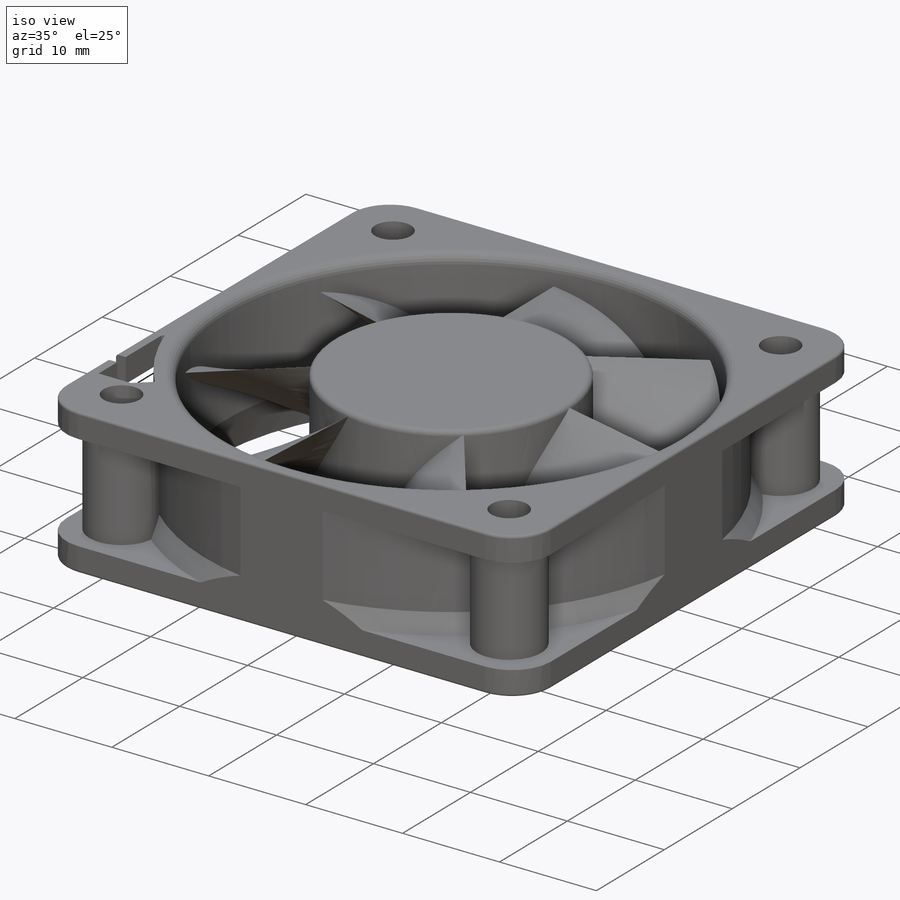
[diagram: iso view]
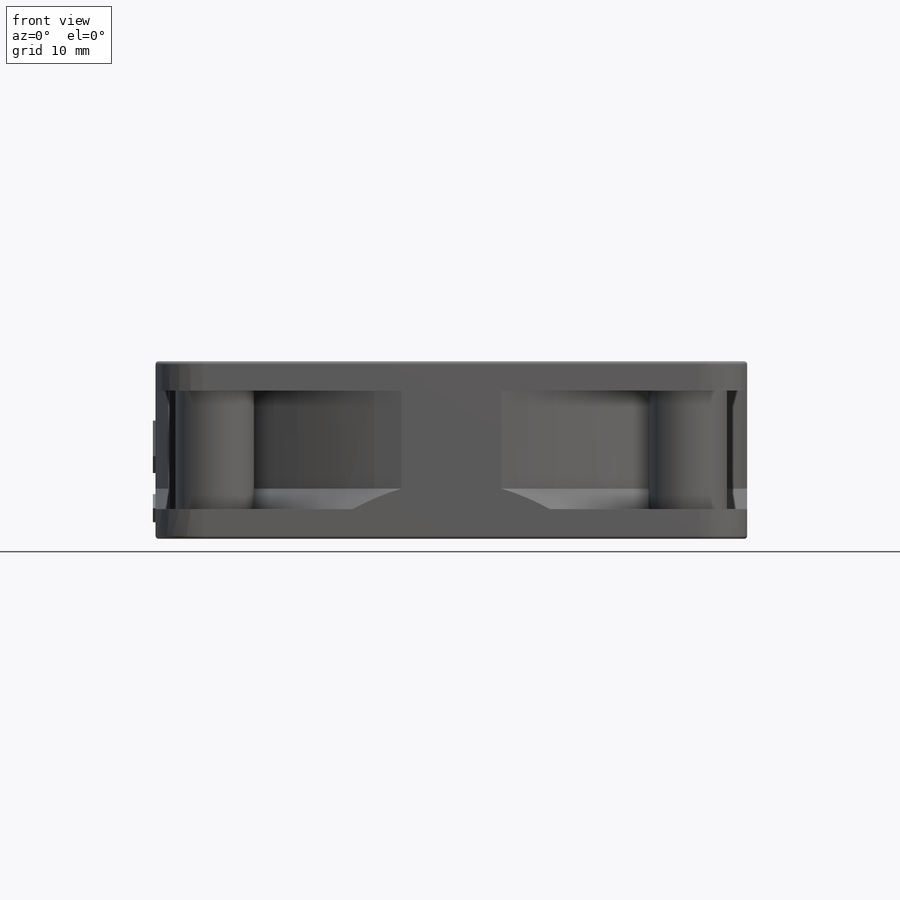
[diagram: front view]
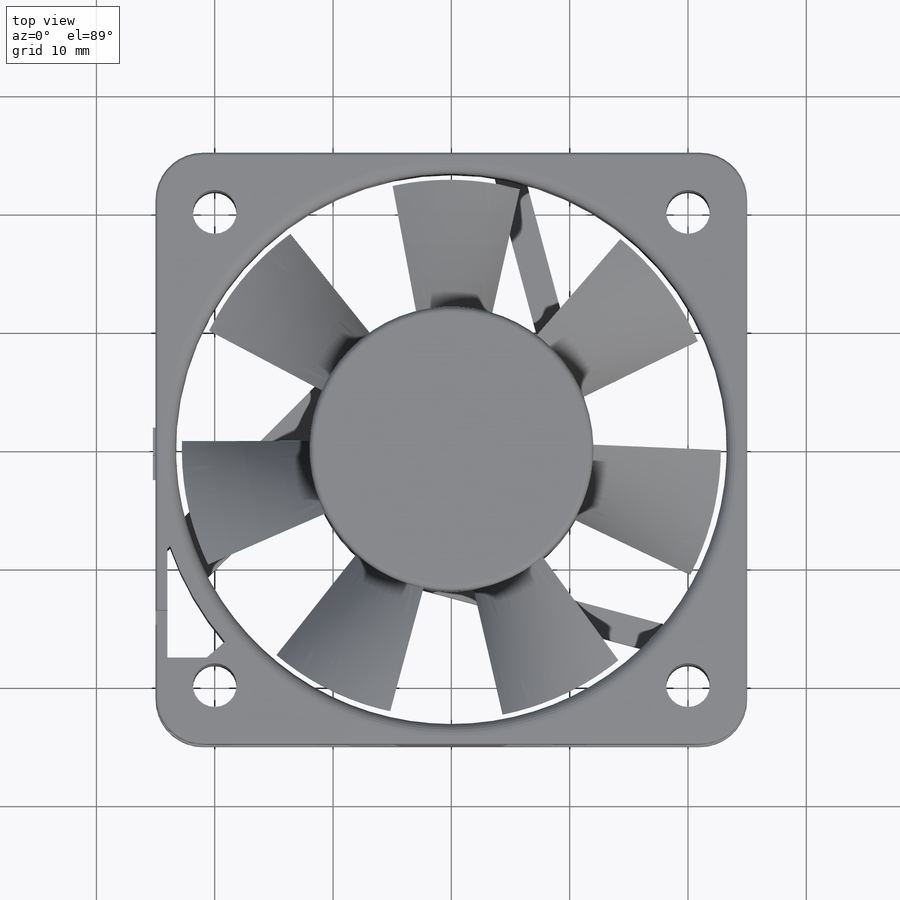
[diagram: top view]
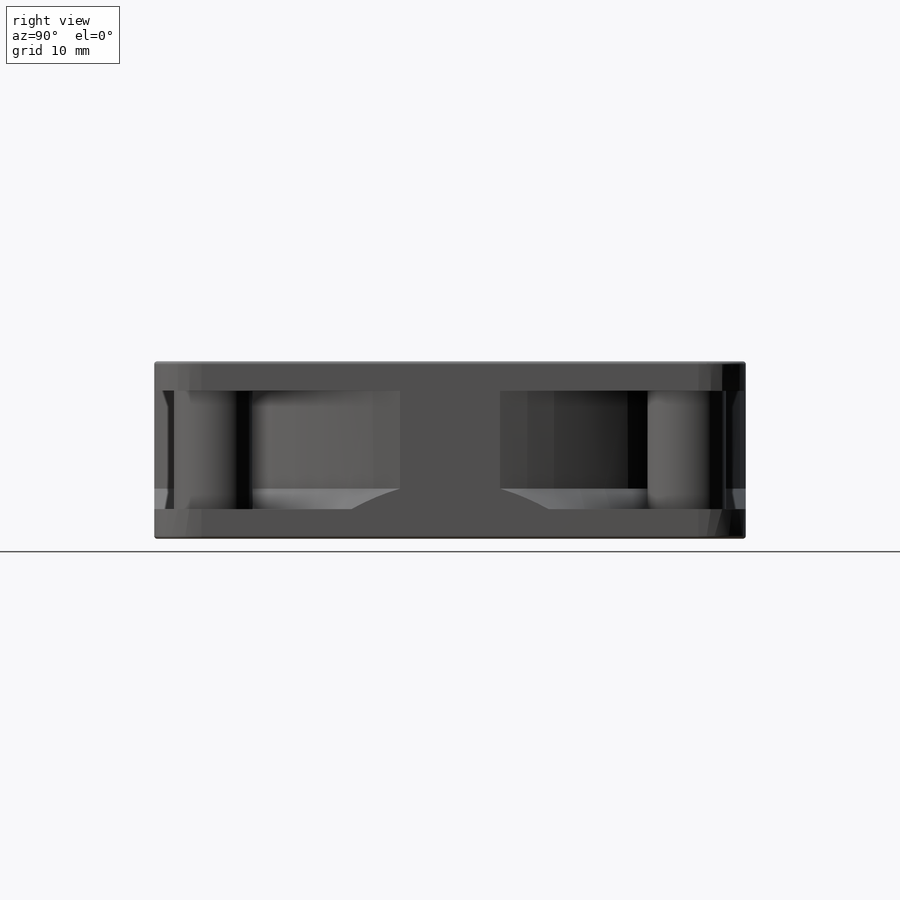
[diagram: right view]
SOLIDWORKS PART (.sldprt)
format: sldprt  version: not decoded by parser v0  size: 1,660,928 bytes
history: native  units: mm
features: sketch x16, extrude x6, cut_extrude x6, fillet x5, plane x5, chamfer x2, material x1, cut_revolve x1, pattern_circular x1 (+12 scaffold rows collapsed)
feature tree (55):
  scaffold x12  (default folders/planes/origin — collapsed)
  material  "Material <not specified>"
  sketch  "Sketch1"  dims[Body Width Location=25.0mm Body Width=50.0mm Body Height Location=25.0mm Body Height=50.0mm]
  extrude  "Main Body"  Depth=15mm
  sketch  "Sketch2"  dims[D1=46.55mm]
  cut_extrude  "Fan Hole Cut"  [1 undecoded]
  chamfer  "Fan Hole Front Chamfer"  Distance=1.5mm Angle=70deg
  sketch  "Sketch3"  dims[c1.D1=24.0mm c1.D2=~51.858483mm c2.D2=15.0deg c2.D3=2.5mm c2.D4=~51.776428mm c3.D4=15.0deg c3.D5=2.5mm c3.D6=~21.101555mm c4.D6=45.0deg c4.D7=~21.101555mm c5.D7=2.5deg c6.D7=5.0mm]
  extrude  "Fan Support"  Depth=2.5mm
  sketch  "Sketch4"  dims[D1=23.5mm]
  extrude  "PCB"  Depth=2.5mm
  sketch  "Sketch5"  dims[D1=9.5mm]
  extrude  "Fan Body"  Depth=9.9mm
  fillet  "Fan Hole Rear Fillet"  Radius=1mm
  plane  "Plane1"
  sketch  "Sketch6"  dims[D1=10.0mm D2=2.5mm D3=2.5mm]
  cut_revolve  "Outer Cut-Revolve1"  Angle=360deg
  sketch  "Sketch7"  dims[D1=6.66mm D2=40.0mm D3=40.0mm D4=20.0mm D5=20.0mm]
  extrude  "Mount Screw Extrude"  [1 undecoded]
  sketch  "Sketch8"  dims[D1=3.7mm D2=20.0mm D3=40.0mm D4=20.0mm D5=40.0mm]
  cut_extrude  "Mount Screw Holes"  [1 undecoded]
  fillet  "Corner Fillets"  Radius=4mm
  plane  "Plane2"  Offset=11mm
  plane  "Plane3"  Offset=12mm
  sketch  "Sketch10"  dims[D1=0.25mm]
  sketch  "Sketch11"  dims[D1=0.25mm]
  pattern_circular  "Fan Blades CirPattern"  Count=7 Angle=360deg
  sketch  "Sketch12"  dims[D5=0.5mm D6=10.0mm D7=5.0mm]
  sketch  "Sketch13"  dims[c1.D3=3.0mm c1.D1=1.0mm c1.D2=1.0mm c2.D3=0.5mm]
  cut_extrude  "Wire Channel"  Depth=2mm
  sketch  "Sketch14"  dims[D1=0.0mm D2=0.1mm]
  cut_extrude  "Wire Channel Through Cut"  [1 undecoded]
  sketch  "Sketch15"  dims[D1=1.25mm D2=0.5mm]
  cut_extrude  "Wire Channel Access"  [1 undecoded]
  sketch  "Sketch16"  dims[D1=1.25mm D2=1.0mm]
  cut_extrude  "Wire Channel Access 2"  [1 undecoded]
  fillet  "Front Edge Fillet"  Radius=0.25mm
  fillet  "Rear Edge Fillet"  Radius=0.25mm
  fillet  "Fan Body Fillet"  Radius=0.5mm
  chamfer  "Outer Cut Chamfer"  Distance=1mm Angle=60deg
  sketch  "Sketch19"
  extrude  "Direction Arrows"  Depth=0.23mm
  plane  "Plane4"  Offset=0.65mm
  plane  "Plane5"  Offset=30mm
decode coverage: 30 of 37 modeling features carry decoded parameters
note: ~ marks probable driven/reference dimensions
note: 6 parameter values undecoded
summary: no parameter record found for 6 features
note: suppression state not decoded; provenance and decode notes live in map.json
